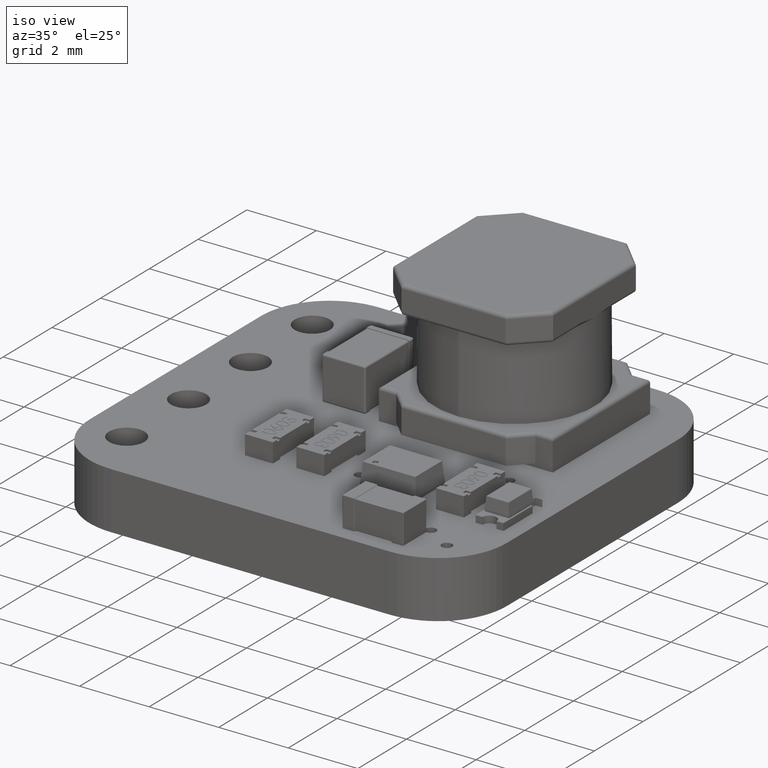
[diagram: clean part render]
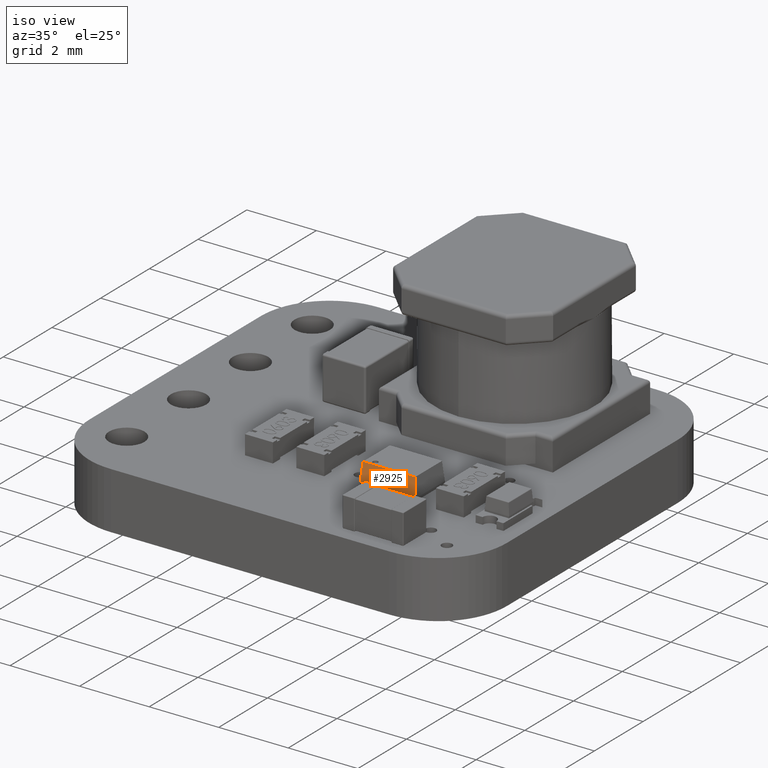
[diagram: same view with one face highlighted and labeled with its STEP entity id]
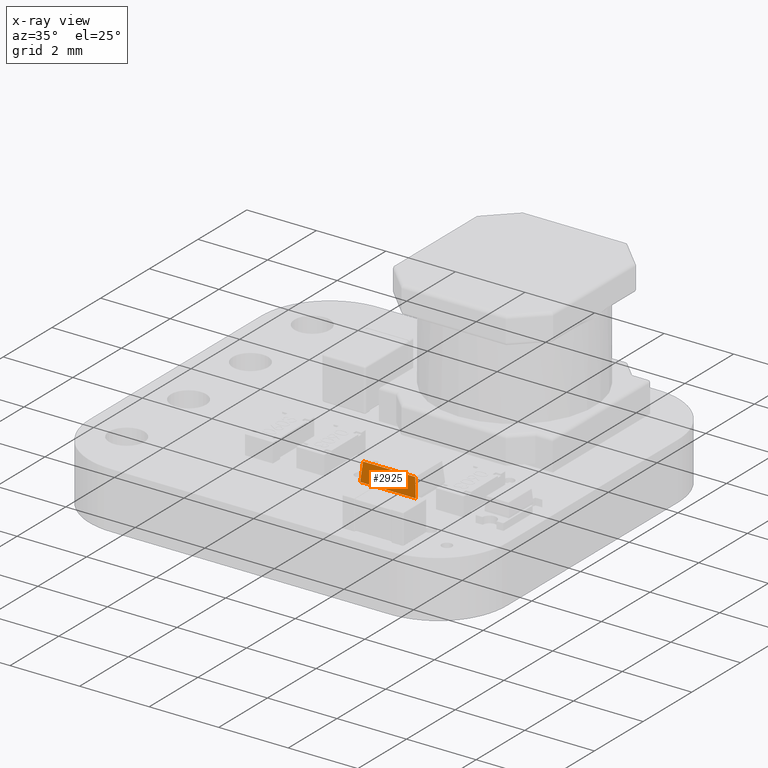
[diagram: x-ray of the same camera — body ghosted, the highlighted face saturated]
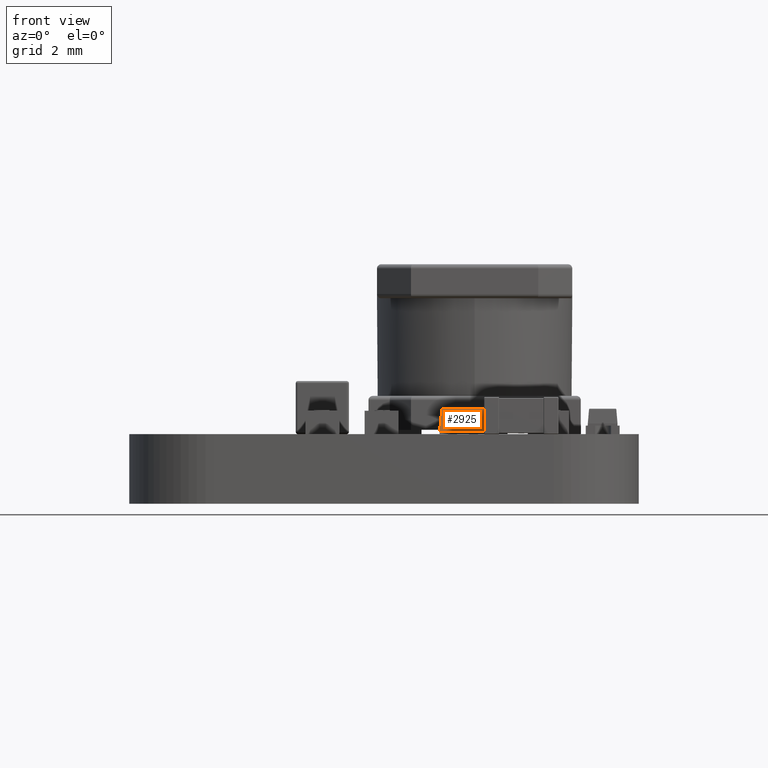
[diagram: same view with one face highlighted and labeled with its STEP entity id]
A machine part, iso view. The second image highlights one B-rep face of the part: STEP entity #2925.
The next image is the same camera in x-ray: the body ghosted, the highlighted face saturated — about 0% of this face is hidden behind the body in this view.
A second angle (front view) of the same face is appended — the face is thin or edge-on in the first view.
In plain terms, the highlighted planar face has unit normal (-0, 0.9955, -0.0948).
Its self-contained STEP definition (entity closure, byte-faithful):
#2861 = VERTEX_POINT('',#2862);
#2862 = CARTESIAN_POINT('',(-0.6,-0.8,7.3E-02));
#2877 = VERTEX_POINT('',#2878);
#2878 = CARTESIAN_POINT('',(-0.6,0.8,7.3E-02));
#2884 = EDGE_CURVE('',#2861,#2877,#2885,.T.);
#2885 = LINE('',#2886,#2887);
#2886 = CARTESIAN_POINT('',(-0.6,-0.8,7.3E-02));
#2887 = VECTOR('',#2888,1.);
#2888 = DIRECTION('',(0.,1.,0.));
#2925 = ADVANCED_FACE('',(#2926),#2951,.F.);
#2926 = FACE_BOUND('',#2927,.F.);
#2927 = EDGE_LOOP('',(#2928,#2936,#2937,#2945));
#2928 = ORIENTED_EDGE('',*,*,#2929,.F.);
#2929 = EDGE_CURVE('',#2861,#2930,#2932,.T.);
#2930 = VERTEX_POINT('',#2931);
#2931 = CARTESIAN_POINT('',(-0.55,-0.75,0.598));
#2932 = LINE('',#2933,#2934);
#2933 = CARTESIAN_POINT('',(-0.575222717149,-0.775222717149,
    0.333161469933));
#2934 = VECTOR('',#2935,1.);
#2935 = DIRECTION('',(9.438583563663E-02,9.438583563663E-02,
    0.991051274184));
#2936 = ORIENTED_EDGE('',*,*,#2884,.T.);
#2937 = ORIENTED_EDGE('',*,*,#2938,.T.);
#2938 = EDGE_CURVE('',#2877,#2939,#2941,.T.);
#2939 = VERTEX_POINT('',#2940);
#2940 = CARTESIAN_POINT('',(-0.55,0.75,0.598));
#2941 = LINE('',#2942,#2943);
#2942 = CARTESIAN_POINT('',(-0.568095768374,0.768095768374,
    0.407994432071));
#2943 = VECTOR('',#2944,1.);
#2944 = DIRECTION('',(9.438583563663E-02,-9.438583563663E-02,
    0.991051274184));
#2945 = ORIENTED_EDGE('',*,*,#2946,.F.);
#2946 = EDGE_CURVE('',#2930,#2939,#2947,.T.);
#2947 = LINE('',#2948,#2949);
#2948 = CARTESIAN_POINT('',(-0.55,-0.8,0.598));
#2949 = VECTOR('',#2950,1.);
#2950 = DIRECTION('',(0.,1.,0.));
#2951 = PLANE('',#2952);
#2952 = AXIS2_PLACEMENT_3D('',#2953,#2954,#2955);
#2953 = CARTESIAN_POINT('',(-0.575,-0.8,0.3355));
#2954 = DIRECTION('',(0.995495472594,8.68567075401E-19,-9.4809092628E-02
    ));
#2955 = DIRECTION('',(-8.646545912058E-19,1.,8.234805630532E-20));